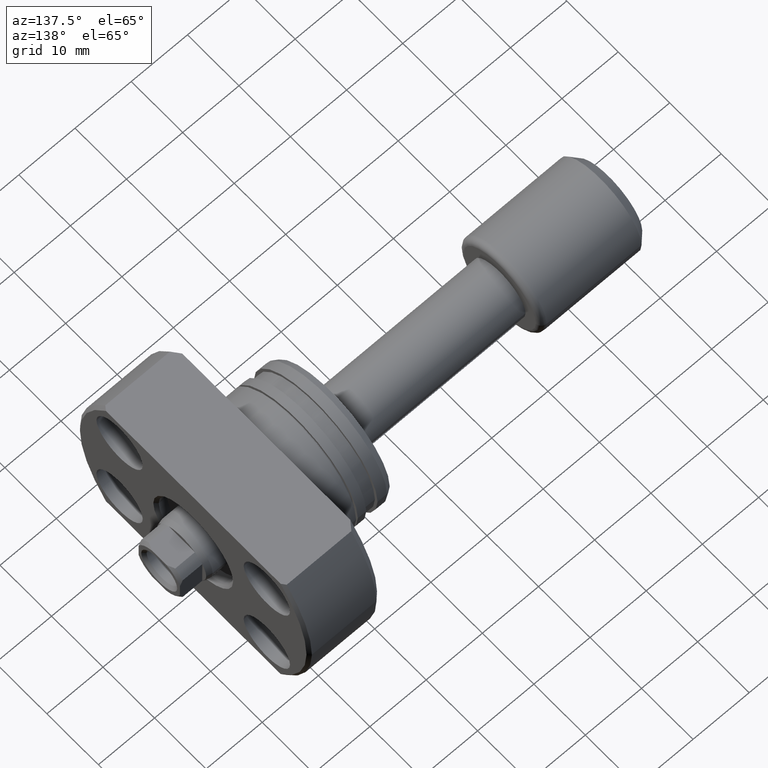
[diagram: clean part render]
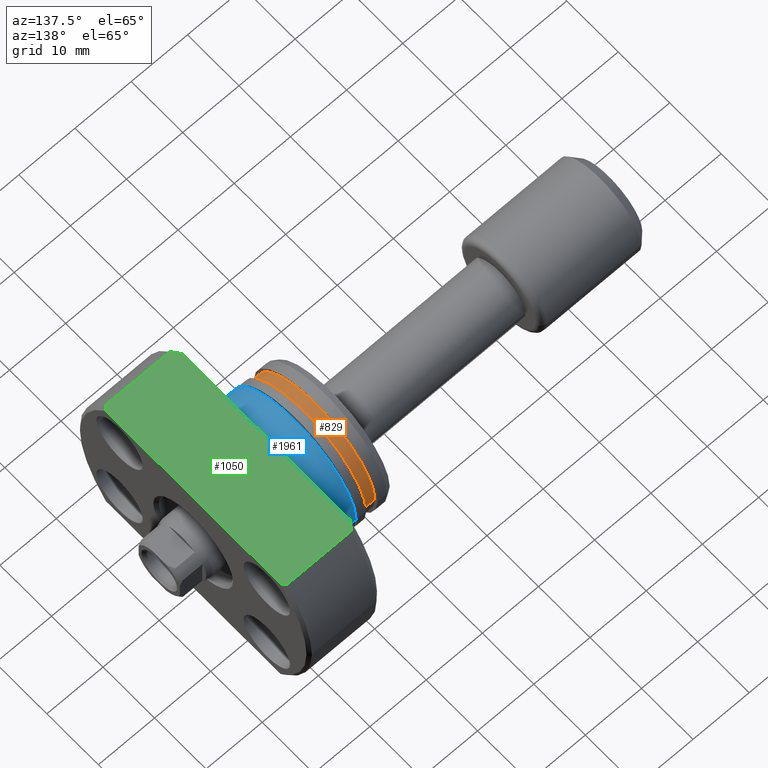
[diagram: same view with three faces highlighted in distinct colors, each labeled with its STEP entity id]
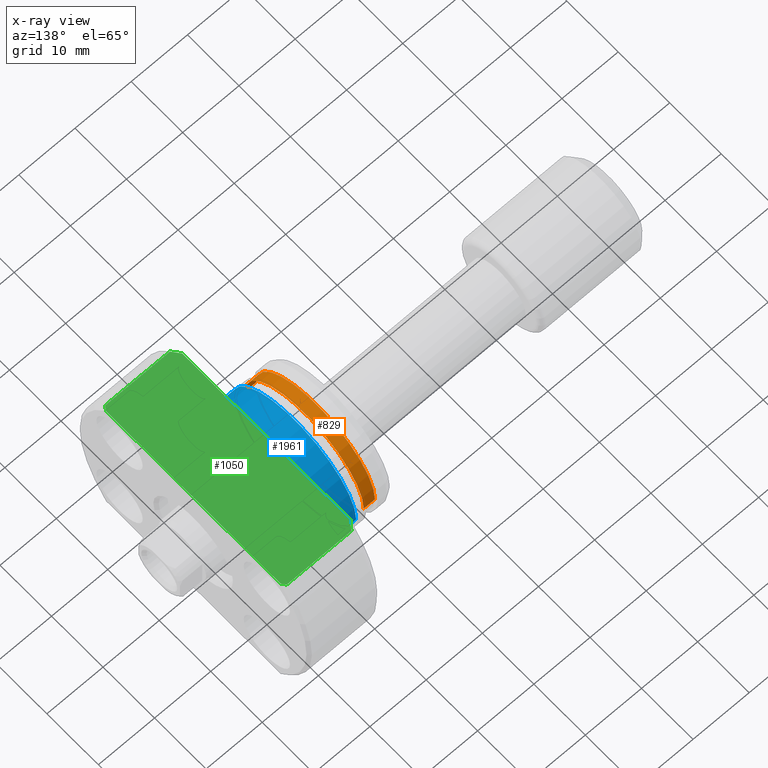
[diagram: x-ray of the same camera — body ghosted, the three highlighted faces saturated]
A machine part, auxiliary view with three faces highlighted in distinct colors.
The next image is the same camera in x-ray (body ghosted, the three faces saturated) — at least one of them is partly hidden behind the body in this view.
Their STEP definitions:

[orange] entity #829 — the highlighted cylindrical surface (partial cylindrical patch) has radius 11.5 mm, axis along (1, 0, 0).
#28 = EDGE_CURVE ( 'NONE', #2316, #1693, #611, .T. ) ;
#182 = LINE ( 'NONE', #868, #1024 ) ;
#373 = CARTESIAN_POINT ( 'NONE',  ( 24.50000000000000355, -11.49999999999999289, 1.408343819019455387E-15 ) ) ;
#375 = DIRECTION ( 'NONE',  ( 1.000000000000000000, 4.998558363877804092E-19, -0.000000000000000000 ) ) ;
#382 = CARTESIAN_POINT ( 'NONE',  ( 4.699999999998548894, 11.49999999999999112, 0.000000000000000000 ) ) ;
#401 = DIRECTION ( 'NONE',  ( 0.000000000000000000, 1.000000000000000000, 0.000000000000000000 ) ) ;
#611 = CIRCLE ( 'NONE', #2285, 11.49999999999999289 ) ;
#673 = EDGE_CURVE ( 'NONE', #869, #1354, #1774, .T. ) ;
#700 = DIRECTION ( 'NONE',  ( 1.000000000000000000, 4.998558363877804092E-19, -0.000000000000000000 ) ) ;
#829 = ADVANCED_FACE ( 'NONE', ( #1437 ), #2931, .T. ) ;
#868 = CARTESIAN_POINT ( 'NONE',  ( 24.50000000000000355, 11.49999999999999289, 0.000000000000000000 ) ) ;
#869 = VERTEX_POINT ( 'NONE', #382 ) ;
#1024 = VECTOR ( 'NONE', #375, 1000.000000000000000 ) ;
#1071 = ORIENTED_EDGE ( 'NONE', *, *, #2824, .F. ) ;
#1114 = CARTESIAN_POINT ( 'NONE',  ( 4.699999999998548894, -11.49999999999999112, 1.408343819019455190E-15 ) ) ;
#1138 = AXIS2_PLACEMENT_3D ( 'NONE', #2128, #700, #401 ) ;
#1215 = ORIENTED_EDGE ( 'NONE', *, *, #673, .F. ) ;
#1354 = VERTEX_POINT ( 'NONE', #1114 ) ;
#1437 = FACE_OUTER_BOUND ( 'NONE', #3181, .T. ) ;
#1585 = DIRECTION ( 'NONE',  ( 1.000000000000000000, 4.998558363877804092E-19, -0.000000000000000000 ) ) ;
#1693 = VERTEX_POINT ( 'NONE', #1843 ) ;
#1702 = ORIENTED_EDGE ( 'NONE', *, *, #2245, .T. ) ;
#1774 = CIRCLE ( 'NONE', #3018, 11.49999999999999112 ) ;
#1835 = CARTESIAN_POINT ( 'NONE',  ( 4.699999999998548894, 2.349322431021842676E-18, 0.000000000000000000 ) ) ;
#1843 = CARTESIAN_POINT ( 'NONE',  ( 2.699999999999782574, -11.49999999999999289, 1.408343819019455387E-15 ) ) ;
#1898 = DIRECTION ( 'NONE',  ( 1.000000000000000000, 4.998558363877804092E-19, -0.000000000000000000 ) ) ;
#2108 = DIRECTION ( 'NONE',  ( 0.000000000000000000, 1.000000000000000000, 0.000000000000000000 ) ) ;
#2128 = CARTESIAN_POINT ( 'NONE',  ( 24.50000000000000355, 1.224646799150062205E-17, 0.000000000000000000 ) ) ;
#2175 = VECTOR ( 'NONE', #1898, 1000.000000000000000 ) ;
#2245 = EDGE_CURVE ( 'NONE', #1693, #1354, #2405, .T. ) ;
#2285 = AXIS2_PLACEMENT_3D ( 'NONE', #2401, #2878, #2865 ) ;
#2316 = VERTEX_POINT ( 'NONE', #2418 ) ;
#2401 = CARTESIAN_POINT ( 'NONE',  ( 2.699999999999782574, 1.349610758246898925E-18, 0.000000000000000000 ) ) ;
#2405 = LINE ( 'NONE', #373, #2175 ) ;
#2418 = CARTESIAN_POINT ( 'NONE',  ( 2.699999999999782574, 11.49999999999999289, 0.000000000000000000 ) ) ;
#2824 = EDGE_CURVE ( 'NONE', #2316, #869, #182, .T. ) ;
#2865 = DIRECTION ( 'NONE',  ( 0.000000000000000000, 1.000000000000000000, 0.000000000000000000 ) ) ;
#2878 = DIRECTION ( 'NONE',  ( 1.000000000000000000, 4.998558363877804092E-19, -0.000000000000000000 ) ) ;
#2931 = CYLINDRICAL_SURFACE ( 'NONE', #1138, 11.49999999999999289 ) ;
#3018 = AXIS2_PLACEMENT_3D ( 'NONE', #1835, #1585, #2108 ) ;
#3031 = ORIENTED_EDGE ( 'NONE', *, *, #28, .T. ) ;
#3181 = EDGE_LOOP ( 'NONE', ( #3031, #1702, #1215, #1071 ) ) ;

[blue] entity #1961 — the highlighted cylindrical surface (partial cylindrical patch) has radius 12 mm, axis along (1, 0, 0).
#13 = EDGE_LOOP ( 'NONE', ( #2702, #204, #2366, #3185 ) ) ;
#35 = DIRECTION ( 'NONE',  ( 1.000000000000000000, 4.998558363877804092E-19, -0.000000000000000000 ) ) ;
#41 = EDGE_CURVE ( 'NONE', #2735, #164, #2756, .T. ) ;
#159 = DIRECTION ( 'NONE',  ( 1.000000000000000000, 4.998558363877804092E-19, -0.000000000000000000 ) ) ;
#164 = VERTEX_POINT ( 'NONE', #1675 ) ;
#204 = ORIENTED_EDGE ( 'NONE', *, *, #2684, .T. ) ;
#275 = EDGE_CURVE ( 'NONE', #1995, #1972, #2540, .T. ) ;
#287 = VECTOR ( 'NONE', #35, 1000.000000000000000 ) ;
#326 = EDGE_CURVE ( 'NONE', #1995, #2735, #2021, .T. ) ;
#759 = FACE_OUTER_BOUND ( 'NONE', #13, .T. ) ;
#775 = AXIS2_PLACEMENT_3D ( 'NONE', #2089, #159, #2157 ) ;
#778 = VECTOR ( 'NONE', #2982, 1000.000000000000000 ) ;
#801 = DIRECTION ( 'NONE',  ( 0.000000000000000000, 1.000000000000000000, 0.000000000000000000 ) ) ;
#1047 = CARTESIAN_POINT ( 'NONE',  ( 6.499999999999780620, 3.249062936520462593E-18, 0.000000000000000000 ) ) ;
#1202 = CARTESIAN_POINT ( 'NONE',  ( 24.50000000000000355, 1.224646799150062205E-17, 0.000000000000000000 ) ) ;
#1277 = LINE ( 'NONE', #2013, #287 ) ;
#1481 = CARTESIAN_POINT ( 'NONE',  ( 6.499999999999780620, 11.99999999999999822, 0.000000000000000000 ) ) ;
#1675 = CARTESIAN_POINT ( 'NONE',  ( 11.49999999999977973, -11.99999999999999467, 1.469576158976823356E-15 ) ) ;
#1961 = ADVANCED_FACE ( 'NONE', ( #759 ), #2441, .T. ) ;
#1972 = VERTEX_POINT ( 'NONE', #2937 ) ;
#1995 = VERTEX_POINT ( 'NONE', #1481 ) ;
#2013 = CARTESIAN_POINT ( 'NONE',  ( 24.50000000000000355, -11.99999999999999645, 1.469576158976823553E-15 ) ) ;
#2021 = LINE ( 'NONE', #3010, #778 ) ;
#2035 = DIRECTION ( 'NONE',  ( 1.000000000000000000, 4.998558363877804092E-19, -0.000000000000000000 ) ) ;
#2089 = CARTESIAN_POINT ( 'NONE',  ( 11.49999999999977973, 5.748342118459364061E-18, 0.000000000000000000 ) ) ;
#2157 = DIRECTION ( 'NONE',  ( 0.000000000000000000, 1.000000000000000000, 0.000000000000000000 ) ) ;
#2208 = DIRECTION ( 'NONE',  ( 1.000000000000000000, 4.998558363877804092E-19, -0.000000000000000000 ) ) ;
#2366 = ORIENTED_EDGE ( 'NONE', *, *, #41, .F. ) ;
#2441 = CYLINDRICAL_SURFACE ( 'NONE', #3003, 11.99999999999999645 ) ;
#2540 = CIRCLE ( 'NONE', #3119, 11.99999999999999822 ) ;
#2684 = EDGE_CURVE ( 'NONE', #1972, #164, #1277, .T. ) ;
#2702 = ORIENTED_EDGE ( 'NONE', *, *, #275, .T. ) ;
#2735 = VERTEX_POINT ( 'NONE', #2970 ) ;
#2748 = DIRECTION ( 'NONE',  ( 0.000000000000000000, 1.000000000000000000, 0.000000000000000000 ) ) ;
#2756 = CIRCLE ( 'NONE', #775, 11.99999999999999467 ) ;
#2937 = CARTESIAN_POINT ( 'NONE',  ( 6.499999999999780620, -12.00000000000000000, 1.469576158976823947E-15 ) ) ;
#2970 = CARTESIAN_POINT ( 'NONE',  ( 11.49999999999977973, 11.99999999999999467, 0.000000000000000000 ) ) ;
#2982 = DIRECTION ( 'NONE',  ( 1.000000000000000000, 4.998558363877804092E-19, -0.000000000000000000 ) ) ;
#3003 = AXIS2_PLACEMENT_3D ( 'NONE', #1202, #2208, #2748 ) ;
#3010 = CARTESIAN_POINT ( 'NONE',  ( 24.50000000000000355, 11.99999999999999645, 0.000000000000000000 ) ) ;
#3119 = AXIS2_PLACEMENT_3D ( 'NONE', #1047, #2035, #801 ) ;
#3185 = ORIENTED_EDGE ( 'NONE', *, *, #326, .F. ) ;

[green] entity #1050 — the highlighted planar face has unit normal (0, 0, 1).
#157 = CARTESIAN_POINT ( 'NONE',  ( -1.422473250300981817E-13, 17.61391495380915018, 14.00000000000000355 ) ) ;
#300 = CARTESIAN_POINT ( 'NONE',  ( 24.33413566286970564, -17.18558304397054926, 14.00000000000000355 ) ) ;
#407 = CARTESIAN_POINT ( 'NONE',  ( 12.16362554919180994, -17.18423051607681984, 14.00000000000000355 ) ) ;
#434 = EDGE_CURVE ( 'NONE', #1584, #2216, #1624, .T. ) ;
#484 = DIRECTION ( 'NONE',  ( 1.000000000000000000, -2.886466111666351885E-14, -0.000000000000000000 ) ) ;
#568 = B_SPLINE_CURVE_WITH_KNOTS ( 'NONE', 3,
 ( #1410, #625, #407, #1392 ),
 .UNSPECIFIED., .F., .F.,
 ( 4, 4 ),
 ( 0.06624998678667230745, 0.06788534956766804906 ),
 .UNSPECIFIED. ) ;
#625 = CARTESIAN_POINT ( 'NONE',  ( 11.83011165526848885, -16.75213407002135213, 14.00000000000000355 ) ) ;
#632 = EDGE_CURVE ( 'NONE', #3155, #1784, #3139, .T. ) ;
#648 = CARTESIAN_POINT ( 'NONE',  ( 12.49999999999977263, 17.61391495380878425, 13.99999999999999645 ) ) ;
#714 = CARTESIAN_POINT ( 'NONE',  ( 24.00000000000007461, 17.61391495380845029, 13.99999999999999645 ) ) ;
#730 = CARTESIAN_POINT ( 'NONE',  ( -1.162264728904460753E-12, -17.61391495380774685, 14.00000000000001066 ) ) ;
#750 = ORIENTED_EDGE ( 'NONE', *, *, #1988, .T. ) ;
#752 = CARTESIAN_POINT ( 'NONE',  ( 24.16739802011472449, 17.40008086510889740, 14.00000000000000355 ) ) ;
#772 = EDGE_LOOP ( 'NONE', ( #1762, #1239, #1419, #750, #2153, #1678, #1190, #2667 ) ) ;
#803 = CARTESIAN_POINT ( 'NONE',  ( 11.49999999999978861, 16.31716887208061095, 14.00000000000000355 ) ) ;
#810 = EDGE_CURVE ( 'NONE', #3155, #1584, #2815, .T. ) ;
#873 = VECTOR ( 'NONE', #2611, 1000.000000000000000 ) ;
#880 = LINE ( 'NONE', #1674, #3214 ) ;
#893 = CARTESIAN_POINT ( 'NONE',  ( -1.422473250300981817E-13, 17.61391495380914307, 13.99999999999999645 ) ) ;
#895 = CARTESIAN_POINT ( 'NONE',  ( 24.00000000000007461, 17.61391495380845029, 13.99999999999999645 ) ) ;
#1029 = B_SPLINE_CURVE_WITH_KNOTS ( 'NONE', 3,
 ( #2332, #2538, #300, #1861 ),
 .UNSPECIFIED., .F., .F.,
 ( 4, 4 ),
 ( 0.02824287035670665011, 0.02906016577245322530 ),
 .UNSPECIFIED. ) ;
#1048 = CARTESIAN_POINT ( 'NONE',  ( 12.49999999999977263, 17.61391495380878425, 13.99999999999999645 ) ) ;
#1050 = ADVANCED_FACE ( 'NONE', ( #2399 ), #2172, .T. ) ;
#1083 = AXIS2_PLACEMENT_3D ( 'NONE', #157, #1151, #2155 ) ;
#1136 = VECTOR ( 'NONE', #2923, 1000.000000000000000 ) ;
#1150 = EDGE_CURVE ( 'NONE', #1201, #1784, #1321, .T. ) ;
#1151 = DIRECTION ( 'NONE',  ( 0.000000000000000000, 0.000000000000000000, 1.000000000000000000 ) ) ;
#1190 = ORIENTED_EDGE ( 'NONE', *, *, #1150, .T. ) ;
#1201 = VERTEX_POINT ( 'NONE', #3215 ) ;
#1239 = ORIENTED_EDGE ( 'NONE', *, *, #434, .T. ) ;
#1321 = B_SPLINE_CURVE_WITH_KNOTS ( 'NONE', 3,
 ( #3183, #2986, #752, #714 ),
 .UNSPECIFIED., .F., .F.,
 ( 4, 4 ),
 ( 0.06706314534022636553, 0.06787700449519981638 ),
 .UNSPECIFIED. ) ;
#1392 = CARTESIAN_POINT ( 'NONE',  ( 12.49999999999977263, -17.61391495380810568, 14.00000000000001066 ) ) ;
#1410 = CARTESIAN_POINT ( 'NONE',  ( 11.49999999999978684, -16.31716887208061095, 14.00000000000000355 ) ) ;
#1419 = ORIENTED_EDGE ( 'NONE', *, *, #1780, .T. ) ;
#1449 = VERTEX_POINT ( 'NONE', #2465 ) ;
#1584 = VERTEX_POINT ( 'NONE', #803 ) ;
#1624 = LINE ( 'NONE', #2820, #873 ) ;
#1648 = CARTESIAN_POINT ( 'NONE',  ( 11.82989979264795011, 16.75185491336265997, 14.00000000000000355 ) ) ;
#1674 = CARTESIAN_POINT ( 'NONE',  ( 24.50000000000000000, 17.61391495380915018, 14.00000000000000355 ) ) ;
#1678 = ORIENTED_EDGE ( 'NONE', *, *, #1781, .T. ) ;
#1762 = ORIENTED_EDGE ( 'NONE', *, *, #810, .T. ) ;
#1780 = EDGE_CURVE ( 'NONE', #2216, #2336, #568, .T. ) ;
#1781 = EDGE_CURVE ( 'NONE', #1449, #1201, #880, .T. ) ;
#1784 = VERTEX_POINT ( 'NONE', #895 ) ;
#1861 = CARTESIAN_POINT ( 'NONE',  ( 24.50000000000000000, -16.97056274847713553, 14.00000000000000355 ) ) ;
#1988 = EDGE_CURVE ( 'NONE', #2336, #2759, #2959, .T. ) ;
#2153 = ORIENTED_EDGE ( 'NONE', *, *, #2431, .T. ) ;
#2155 = DIRECTION ( 'NONE',  ( 1.000000000000000000, 0.000000000000000000, -0.000000000000000000 ) ) ;
#2172 = PLANE ( 'NONE',  #1083 ) ;
#2216 = VERTEX_POINT ( 'NONE', #3083 ) ;
#2233 = VECTOR ( 'NONE', #484, 1000.000000000000000 ) ;
#2332 = CARTESIAN_POINT ( 'NONE',  ( 24.00000000000007461, -17.61391495380843963, 14.00000000000001066 ) ) ;
#2336 = VERTEX_POINT ( 'NONE', #2934 ) ;
#2383 = CARTESIAN_POINT ( 'NONE',  ( 12.16342151182557352, 17.18396987891851424, 14.00000000000000355 ) ) ;
#2399 = FACE_OUTER_BOUND ( 'NONE', #772, .T. ) ;
#2431 = EDGE_CURVE ( 'NONE', #2759, #1449, #1029, .T. ) ;
#2465 = CARTESIAN_POINT ( 'NONE',  ( 24.50000000000000000, -16.97056274847713553, 14.00000000000000355 ) ) ;
#2538 = CARTESIAN_POINT ( 'NONE',  ( 24.16744706737967618, -17.40001821217426681, 14.00000000000000355 ) ) ;
#2611 = DIRECTION ( 'NONE',  ( 4.998558363877804092E-19, -1.000000000000000000, 0.000000000000000000 ) ) ;
#2667 = ORIENTED_EDGE ( 'NONE', *, *, #632, .F. ) ;
#2758 = CARTESIAN_POINT ( 'NONE',  ( 24.00000000000007461, -17.61391495380843963, 14.00000000000001066 ) ) ;
#2759 = VERTEX_POINT ( 'NONE', #2758 ) ;
#2815 = B_SPLINE_CURVE_WITH_KNOTS ( 'NONE', 3,
 ( #648, #2383, #1648, #3135 ),
 .UNSPECIFIED., .F., .F.,
 ( 4, 4 ),
 ( 0.02825164645976066535, 0.02989446144990340337 ),
 .UNSPECIFIED. ) ;
#2820 = CARTESIAN_POINT ( 'NONE',  ( 11.49999999999978506, -11.99999999999999467, 14.00000000000000355 ) ) ;
#2923 = DIRECTION ( 'NONE',  ( 1.000000000000000000, -2.886466111666351885E-14, -0.000000000000000000 ) ) ;
#2934 = CARTESIAN_POINT ( 'NONE',  ( 12.49999999999977263, -17.61391495380810568, 14.00000000000001066 ) ) ;
#2959 = LINE ( 'NONE', #730, #2233 ) ;
#2986 = CARTESIAN_POINT ( 'NONE',  ( 24.33408568434172992, 17.18564783425659925, 14.00000000000000355 ) ) ;
#3083 = CARTESIAN_POINT ( 'NONE',  ( 11.49999999999978684, -16.31716887208061095, 14.00000000000000355 ) ) ;
#3086 = DIRECTION ( 'NONE',  ( -0.000000000000000000, 1.000000000000000000, 0.000000000000000000 ) ) ;
#3135 = CARTESIAN_POINT ( 'NONE',  ( 11.49999999999978861, 16.31716887208061095, 14.00000000000000355 ) ) ;
#3139 = LINE ( 'NONE', #893, #1136 ) ;
#3155 = VERTEX_POINT ( 'NONE', #1048 ) ;
#3183 = CARTESIAN_POINT ( 'NONE',  ( 24.50000000000000000, 16.97056274847713553, 14.00000000000000355 ) ) ;
#3214 = VECTOR ( 'NONE', #3086, 1000.000000000000000 ) ;
#3215 = CARTESIAN_POINT ( 'NONE',  ( 24.50000000000000000, 16.97056274847713553, 14.00000000000000355 ) ) ;